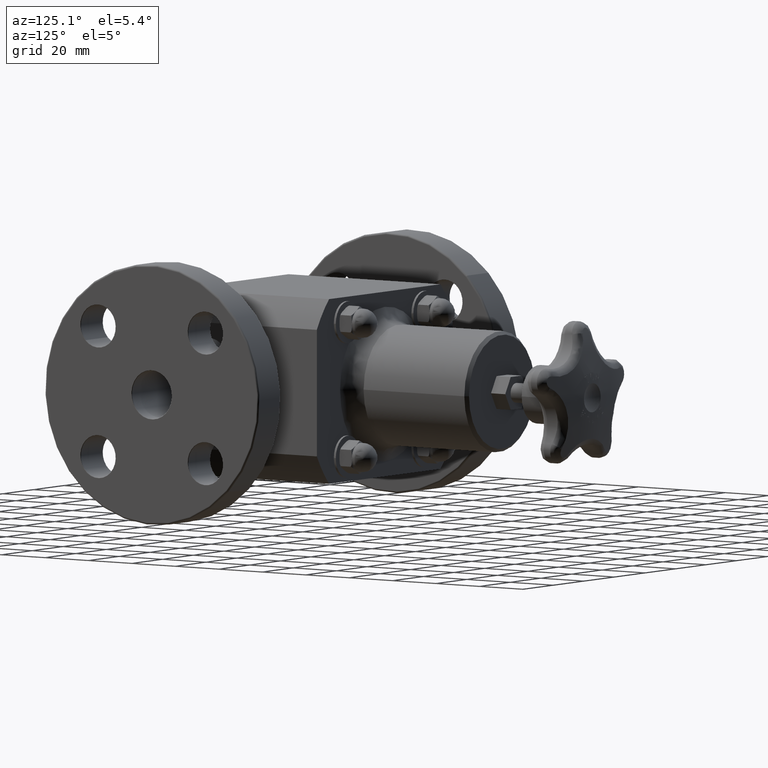
[diagram: clean part render]
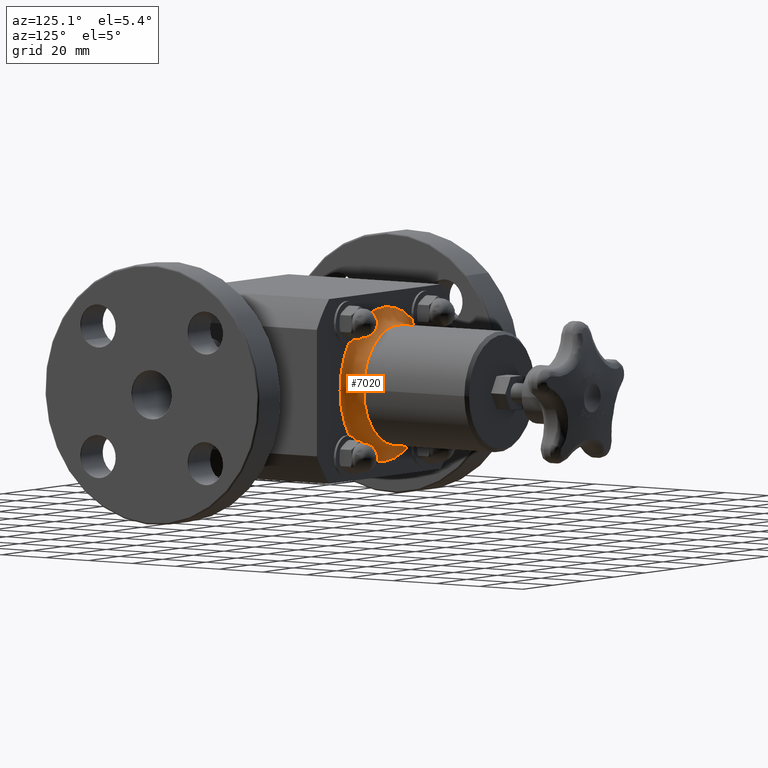
[diagram: same view with one face highlighted and labeled with its STEP entity id]
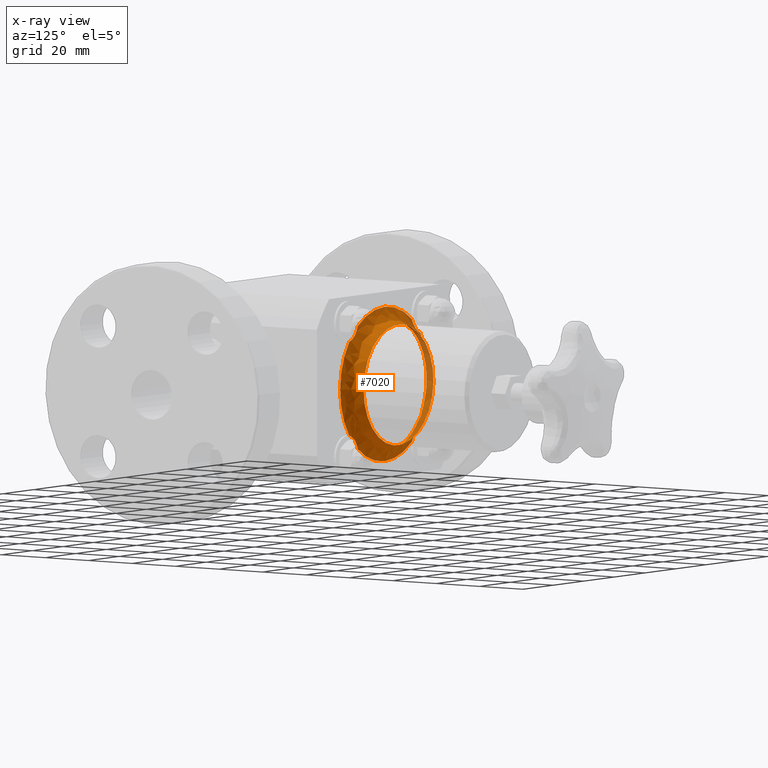
[diagram: x-ray of the same camera — body ghosted, the highlighted face saturated]
A machine part, auxiliary view. The second image highlights one B-rep face of the part: STEP entity #7020.
The next image is the same camera in x-ray: the body ghosted, the highlighted face saturated — about 13% of this face is hidden behind the body in this view.
In plain terms, the highlighted face is a freeform B-spline surface patch.
Its self-contained STEP definition (entity closure, byte-faithful):
#2761=CARTESIAN_POINT('',(-0.912389674803526,2.750000000000000,0.700032200196475));
#2762=VERTEX_POINT('',#2761);
#2763=CARTESIAN_POINT('',(-0.700032200196475,2.750000000000000,0.912389674803526));
#2764=VERTEX_POINT('',#2763);
#2765=CARTESIAN_POINT('',(-0.912389674803526,2.750000000000000,0.700032200196475));
#2766=CARTESIAN_POINT('',(-0.890920859266128,2.750000000000000,0.706302506249480));
#2767=CARTESIAN_POINT('',(-0.870137890229769,2.751028785938191,0.714874248193476));
#2768=CARTESIAN_POINT('',(-0.833649771404711,2.752949680969582,0.734767143059449));
#2769=CARTESIAN_POINT('',(-0.817728851810744,2.753827496845674,0.745440706836836));
#2770=CARTESIAN_POINT('',(-0.790326373741299,2.754699822465579,0.767719206421557));
#2771=CARTESIAN_POINT('',(-0.778617697825829,2.754811132710793,0.778849542356827));
#2772=CARTESIAN_POINT('',(-0.755985674799435,2.754370600405845,0.803977621354562));
#2773=CARTESIAN_POINT('',(-0.745329867363475,2.753757038819790,0.818040211133048));
#2774=CARTESIAN_POINT('',(-0.722682150179649,2.751910876841866,0.853836561876981));
#2775=CARTESIAN_POINT('',(-0.712012080100648,2.750531800998534,0.876194490013606));
#2776=CARTESIAN_POINT('',(-0.702637588494549,2.750041995009258,0.903812379055038));
#2777=CARTESIAN_POINT('',(-0.701287496094986,2.750000000000000,0.908091684264920));
#2778=CARTESIAN_POINT('',(-0.700032200196475,2.750000000000000,0.912389674803526));
#2779=B_SPLINE_CURVE_WITH_KNOTS('',3,(#2765,#2766,#2767,#2768,#2769,#2770,#2771,#2772,#2773,#2774,#2775,#2776,#2777,#2778),.UNSPECIFIED.,.F.,.U.,(4,2,2,2,2,2,4),(-1.221899418168463,-1.051909265708683,-0.907410728704604,-0.785512013678833,-0.652440180147650,-0.465358178974189,-0.431264478927191),.UNSPECIFIED.);
#2780=EDGE_CURVE('',#2762,#2764,#2779,.T.);
#4196=CARTESIAN_POINT('',(0.700032200196475,2.750000000000000,0.912389674803526));
#4197=VERTEX_POINT('',#4196);
#4198=CARTESIAN_POINT('',(0.912389674803526,2.750000000000000,0.700032200196475));
#4199=VERTEX_POINT('',#4198);
#4200=CARTESIAN_POINT('',(0.700032200196475,2.750000000000000,0.912389674803526));
#4201=CARTESIAN_POINT('',(0.706302506249479,2.750000000000000,0.890920859266128));
#4202=CARTESIAN_POINT('',(0.714874248193476,2.751028785938190,0.870137890229769));
#4203=CARTESIAN_POINT('',(0.734767143059447,2.752949680969581,0.833649771404713));
#4204=CARTESIAN_POINT('',(0.745440706836835,2.753827496845674,0.817728851810745));
#4205=CARTESIAN_POINT('',(0.767719206421559,2.754699822465579,0.790326373741296));
#4206=CARTESIAN_POINT('',(0.778849542356829,2.754811132710792,0.778617697825828));
#4207=CARTESIAN_POINT('',(0.803977621354560,2.754370600405846,0.755985674799437));
#4208=CARTESIAN_POINT('',(0.818040211133045,2.753757038819791,0.745329867363477));
#4209=CARTESIAN_POINT('',(0.853836561876980,2.751910876841866,0.722682150179649));
#4210=CARTESIAN_POINT('',(0.876194490013606,2.750531800998534,0.712012080100648));
#4211=CARTESIAN_POINT('',(0.903812379055037,2.750041995009258,0.702637588494549));
#4212=CARTESIAN_POINT('',(0.908091684264920,2.750000000000000,0.701287496094986));
#4213=CARTESIAN_POINT('',(0.912389674803526,2.750000000000000,0.700032200196475));
#4214=B_SPLINE_CURVE_WITH_KNOTS('',3,(#4200,#4201,#4202,#4203,#4204,#4205,#4206,#4207,#4208,#4209,#4210,#4211,#4212,#4213),.UNSPECIFIED.,.F.,.U.,(4,2,2,2,2,2,4),(-1.221899418168551,-1.051909265708730,-0.907410728704642,-0.785512013678843,-0.652440180147630,-0.465358178974173,-0.431264478927176),.UNSPECIFIED.);
#4215=EDGE_CURVE('',#4197,#4199,#4214,.T.);
#4632=CARTESIAN_POINT('',(-0.912389674803526,2.750000000000000,-0.700032200196474));
#4633=VERTEX_POINT('',#4632);
#4634=CARTESIAN_POINT('',(-0.700032200196475,2.750000000000000,-0.912389674803525));
#4635=VERTEX_POINT('',#4634);
#4643=CARTESIAN_POINT('',(0.700032200196474,2.749999999999999,-0.912389674803526));
#4644=VERTEX_POINT('',#4643);
#4645=CARTESIAN_POINT('',(1.748383E-016,2.750000000000000,3.496765E-016));
#4646=DIRECTION('',(0.0,-1.0,0.0));
#4647=DIRECTION('',(1.0,0.0,0.0));
#4648=AXIS2_PLACEMENT_3D('',#4645,#4646,#4647);
#4649=CIRCLE('',#4648,1.150000000000000);
#4650=EDGE_CURVE('',#4635,#4644,#4649,.T.);
#4652=CARTESIAN_POINT('',(0.912389674803527,2.749999999999999,-0.700032200196474));
#4653=VERTEX_POINT('',#4652);
#4661=CARTESIAN_POINT('',(1.748383E-016,2.750000000000000,3.496765E-016));
#4662=DIRECTION('',(0.0,-1.0,0.0));
#4663=DIRECTION('',(1.0,0.0,0.0));
#4664=AXIS2_PLACEMENT_3D('',#4661,#4662,#4663);
#4665=CIRCLE('',#4664,1.150000000000000);
#4666=EDGE_CURVE('',#4653,#4199,#4665,.T.);
#4669=CARTESIAN_POINT('',(1.748383E-016,2.750000000000000,3.496765E-016));
#4670=DIRECTION('',(0.0,-1.0,0.0));
#4671=DIRECTION('',(1.0,0.0,0.0));
#4672=AXIS2_PLACEMENT_3D('',#4669,#4670,#4671);
#4673=CIRCLE('',#4672,1.150000000000000);
#4674=EDGE_CURVE('',#4197,#2764,#4673,.T.);
#4677=CARTESIAN_POINT('',(1.748383E-016,2.750000000000000,3.496765E-016));
#4678=DIRECTION('',(0.0,-1.0,0.0));
#4679=DIRECTION('',(1.0,0.0,0.0));
#4680=AXIS2_PLACEMENT_3D('',#4677,#4678,#4679);
#4681=CIRCLE('',#4680,1.150000000000000);
#4682=EDGE_CURVE('',#2762,#4633,#4681,.T.);
#4737=CARTESIAN_POINT('',(0.900000000000000,3.0,4.395934E-016));
#4738=VERTEX_POINT('',#4737);
#4739=CARTESIAN_POINT('',(1.748383E-016,3.0,3.496765E-016));
#4740=DIRECTION('',(0.0,-1.0,0.0));
#4741=DIRECTION('',(1.0,0.0,0.0));
#4742=AXIS2_PLACEMENT_3D('',#4739,#4740,#4741);
#4743=CIRCLE('',#4742,0.900000000000000);
#4744=EDGE_CURVE('',#4738,#4738,#4743,.T.);
#5526=CARTESIAN_POINT('',(0.912389674803526,2.750000000000000,-0.700032200196474));
#5527=CARTESIAN_POINT('',(0.890920859266128,2.750000000000000,-0.706302506249479));
#5528=CARTESIAN_POINT('',(0.870137890229769,2.751028785938190,-0.714874248193475));
#5529=CARTESIAN_POINT('',(0.833649771404710,2.752949680969581,-0.734767143059448));
#5530=CARTESIAN_POINT('',(0.817728851810742,2.753827496845674,-0.745440706836835));
#5531=CARTESIAN_POINT('',(0.790326373741301,2.754699822465579,-0.767719206421554));
#5532=CARTESIAN_POINT('',(0.778617697825829,2.754811132710793,-0.778849542356825));
#5533=CARTESIAN_POINT('',(0.755985674799435,2.754370600405845,-0.803977621354561));
#5534=CARTESIAN_POINT('',(0.745329867363474,2.753757038819790,-0.818040211133048));
#5535=CARTESIAN_POINT('',(0.722682150179647,2.751910876841866,-0.853836561876981));
#5536=CARTESIAN_POINT('',(0.712012080100647,2.750531800998534,-0.876194490013606));
#5537=CARTESIAN_POINT('',(0.702637588494549,2.750041995009258,-0.903812379055037));
#5538=CARTESIAN_POINT('',(0.701287496094985,2.750000000000000,-0.908091684264920));
#5539=CARTESIAN_POINT('',(0.700032200196474,2.750000000000000,-0.912389674803526));
#5540=B_SPLINE_CURVE_WITH_KNOTS('',3,(#5526,#5527,#5528,#5529,#5530,#5531,#5532,#5533,#5534,#5535,#5536,#5537,#5538,#5539),.UNSPECIFIED.,.F.,.U.,(4,2,2,2,2,2,4),(-1.221899418168479,-1.051909265708650,-0.907410728704543,-0.785512013678776,-0.652440180147613,-0.465358178974162,-0.431264478927164),.UNSPECIFIED.);
#5541=EDGE_CURVE('',#4653,#4644,#5540,.T.);
#6938=CARTESIAN_POINT('',(-1.364829E-016,3.0,1.400000000000001));
#6939=CARTESIAN_POINT('',(-1.364829E-016,2.750000000000000,1.400000000000001));
#6940=CARTESIAN_POINT('',(-8.088983E-017,2.750000000000000,1.150000000000001));
#6941=CARTESIAN_POINT('',(-2.529677E-017,2.750000000000000,0.900000000000001));
#6942=CARTESIAN_POINT('',(-2.529677E-017,3.0,0.900000000000001));
#6943=CARTESIAN_POINT('',(-1.400000000000000,3.0,1.400000000000000));
#6944=CARTESIAN_POINT('',(-1.400000000000000,2.750000000000000,1.400000000000000));
#6945=CARTESIAN_POINT('',(-1.150000000000000,2.750000000000000,1.150000000000000));
#6946=CARTESIAN_POINT('',(-0.900000000000000,2.750000000000000,0.900000000000000));
#6947=CARTESIAN_POINT('',(-0.900000000000000,3.0,0.900000000000000));
#6948=CARTESIAN_POINT('',(-1.400000000000000,3.0,3.835537E-017));
#6949=CARTESIAN_POINT('',(-1.400000000000000,2.750000000000000,3.835537E-017));
#6950=CARTESIAN_POINT('',(-1.150000000000000,2.750000000000000,9.394844E-017));
#6951=CARTESIAN_POINT('',(-0.900000000000000,2.750000000000000,1.495415E-016));
#6952=CARTESIAN_POINT('',(-0.900000000000000,3.0,1.495415E-016));
#6953=CARTESIAN_POINT('',(-1.400000000000000,3.0,-1.400000000000000));
#6954=CARTESIAN_POINT('',(-1.400000000000000,2.750000000000000,-1.400000000000000));
#6955=CARTESIAN_POINT('',(-1.150000000000000,2.750000000000000,-1.150000000000000));
#6956=CARTESIAN_POINT('',(-0.900000000000000,2.750000000000000,-0.900000000000000));
#6957=CARTESIAN_POINT('',(-0.900000000000000,3.0,-0.900000000000000));
#6958=CARTESIAN_POINT('',(4.861594E-016,3.0,-1.400000000000000));
#6959=CARTESIAN_POINT('',(4.861594E-016,2.750000000000000,-1.400000000000000));
#6960=CARTESIAN_POINT('',(4.305664E-016,2.750000000000000,-1.150000000000000));
#6961=CARTESIAN_POINT('',(3.749733E-016,2.750000000000000,-0.900000000000000));
#6962=CARTESIAN_POINT('',(3.749733E-016,3.0,-0.900000000000000));
#6963=CARTESIAN_POINT('',(1.400000000000001,3.0,-1.400000000000000));
#6964=CARTESIAN_POINT('',(1.400000000000001,2.750000000000000,-1.400000000000000));
#6965=CARTESIAN_POINT('',(1.150000000000001,2.750000000000000,-1.150000000000000));
#6966=CARTESIAN_POINT('',(0.900000000000001,2.750000000000000,-0.900000000000000));
#6967=CARTESIAN_POINT('',(0.900000000000001,3.0,-0.900000000000000));
#6968=CARTESIAN_POINT('',(1.400000000000001,3.0,6.609977E-016));
#6969=CARTESIAN_POINT('',(1.400000000000001,2.750000000000000,6.609977E-016));
#6970=CARTESIAN_POINT('',(1.150000000000001,2.750000000000000,6.054046E-016));
#6971=CARTESIAN_POINT('',(0.900000000000001,2.750000000000000,5.498116E-016));
#6972=CARTESIAN_POINT('',(0.900000000000001,3.0,5.498116E-016));
#6973=CARTESIAN_POINT('',(1.400000000000000,3.0,1.400000000000001));
#6974=CARTESIAN_POINT('',(1.400000000000000,2.750000000000000,1.400000000000001));
#6975=CARTESIAN_POINT('',(1.150000000000000,2.750000000000000,1.150000000000001));
#6976=CARTESIAN_POINT('',(0.900000000000000,2.750000000000000,0.900000000000001));
#6977=CARTESIAN_POINT('',(0.900000000000000,3.0,0.900000000000001));
#6978=CARTESIAN_POINT('',(-1.364829E-016,3.0,1.400000000000001));
#6979=CARTESIAN_POINT('',(-1.364829E-016,2.750000000000000,1.400000000000001));
#6980=CARTESIAN_POINT('',(-8.088983E-017,2.750000000000000,1.150000000000001));
#6981=CARTESIAN_POINT('',(-2.529677E-017,2.750000000000000,0.900000000000001));
#6982=CARTESIAN_POINT('',(-2.529677E-017,3.0,0.900000000000001));
#6990=(BOUNDED_SURFACE()B_SPLINE_SURFACE(2,2,((#6938,#6943,#6948,#6953,#6958,#6963,#6968,#6973,#6978),(#6939,#6944,#6949,#6954,#6959,#6964,#6969,#6974,#6979),(#6940,#6945,#6950,#6955,#6960,#6965,#6970,#6975,#6980),(#6941,#6946,#6951,#6956,#6961,#6966,#6971,#6976,#6981),(#6942,#6947,#6952,#6957,#6962,#6967,#6972,#6977,#6982)),.UNSPECIFIED.,.F.,.T.,.U.)B_SPLINE_SURFACE_WITH_KNOTS((3,2,3),(3,2,2,2,3),(-2.659212E-044,1.570796326794897,3.141592653589793),(0.0,1.570796326794897,3.141592653589793,4.712388980384690,6.283185307179586),.UNSPECIFIED.)GEOMETRIC_REPRESENTATION_ITEM()RATIONAL_B_SPLINE_SURFACE(((1.0,0.707106781186548,1.0,0.707106781186548,1.0,0.707106781186548,1.0,0.707106781186548,1.0),(0.707106781186550,0.500000000000002,0.707106781186550,0.500000000000002,0.707106781186550,0.500000000000002,0.707106781186550,0.500000000000002,0.707106781186550),(1.0,0.707106781186548,1.0,0.707106781186548,1.0,0.707106781186548,1.0,0.707106781186548,1.0),(0.707106781186548,0.500000000000001,0.707106781186548,0.500000000000001,0.707106781186548,0.500000000000001,0.707106781186548,0.500000000000001,0.707106781186548),(1.0,0.707106781186548,1.0,0.707106781186548,1.0,0.707106781186548,1.0,0.707106781186548,1.0)))REPRESENTATION_ITEM('')SURFACE());
#6991=ORIENTED_EDGE('',*,*,#4744,.T.);
#6992=EDGE_LOOP('',(#6991));
#6993=FACE_OUTER_BOUND('',#6992,.T.);
#6994=CARTESIAN_POINT('',(-0.700032200196475,2.750000000000000,-0.912389674803525));
#6995=CARTESIAN_POINT('',(-0.706302506249480,2.750000000000000,-0.890920859266126));
#6996=CARTESIAN_POINT('',(-0.714874248193477,2.751028785938191,-0.870137890229768));
#6997=CARTESIAN_POINT('',(-0.734767143059447,2.752949680969581,-0.833649771404712));
#6998=CARTESIAN_POINT('',(-0.745440706836835,2.753827496845674,-0.817728851810744));
#6999=CARTESIAN_POINT('',(-0.767719206421558,2.754699822465579,-0.790326373741296));
#7000=CARTESIAN_POINT('',(-0.778849542356828,2.754811132710792,-0.778617697825827));
#7001=CARTESIAN_POINT('',(-0.803977621354560,2.754370600405846,-0.755985674799436));
#7002=CARTESIAN_POINT('',(-0.818040211133045,2.753757038819790,-0.745329867363476));
#7003=CARTESIAN_POINT('',(-0.853836561876981,2.751910876841866,-0.722682150179647));
#7004=CARTESIAN_POINT('',(-0.876194490013606,2.750531800998534,-0.712012080100647));
#7005=CARTESIAN_POINT('',(-0.903812379055037,2.750041995009258,-0.702637588494549));
#7006=CARTESIAN_POINT('',(-0.908091684264919,2.750000000000000,-0.701287496094985));
#7007=CARTESIAN_POINT('',(-0.912389674803526,2.750000000000000,-0.700032200196474));
#7008=B_SPLINE_CURVE_WITH_KNOTS('',3,(#6994,#6995,#6996,#6997,#6998,#6999,#7000,#7001,#7002,#7003,#7004,#7005,#7006,#7007),.UNSPECIFIED.,.F.,.U.,(4,2,2,2,2,2,4),(-1.221899418168503,-1.051909265708685,-0.907410728704592,-0.785512013678802,-0.652440180147607,-0.465358178974161,-0.431264478927165),.UNSPECIFIED.);
#7009=EDGE_CURVE('',#4635,#4633,#7008,.T.);
#7010=ORIENTED_EDGE('',*,*,#7009,.T.);
#7011=ORIENTED_EDGE('',*,*,#4682,.F.);
#7012=ORIENTED_EDGE('',*,*,#2780,.T.);
#7013=ORIENTED_EDGE('',*,*,#4674,.F.);
#7014=ORIENTED_EDGE('',*,*,#4215,.T.);
#7015=ORIENTED_EDGE('',*,*,#4666,.F.);
#7016=ORIENTED_EDGE('',*,*,#5541,.T.);
#7017=ORIENTED_EDGE('',*,*,#4650,.F.);
#7018=EDGE_LOOP('',(#7010,#7011,#7012,#7013,#7014,#7015,#7016,#7017));
#7019=FACE_BOUND('',#7018,.T.);
#7020=ADVANCED_FACE('',(#6993,#7019),#6990,.T.);